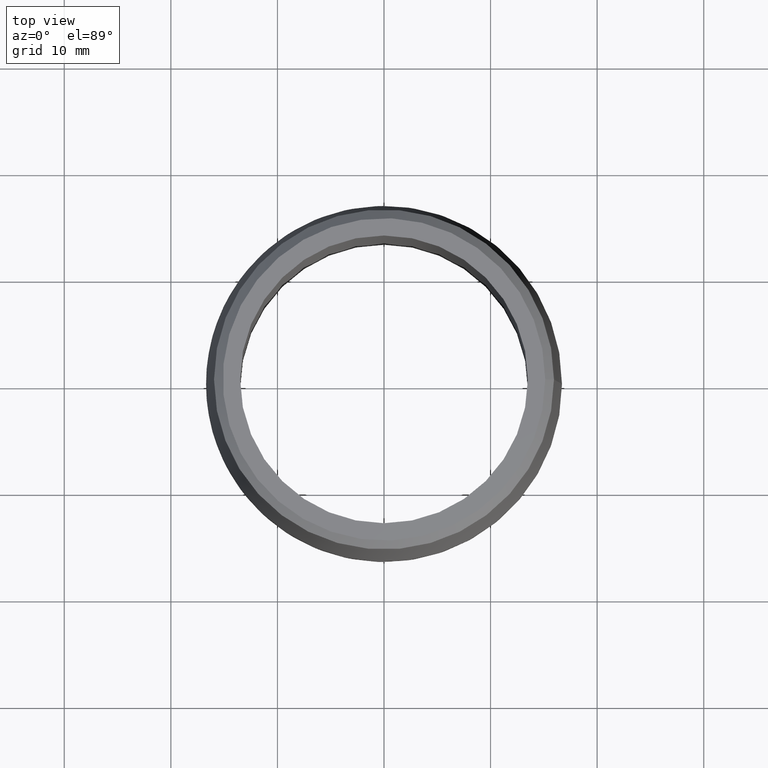
[diagram: clean part render]
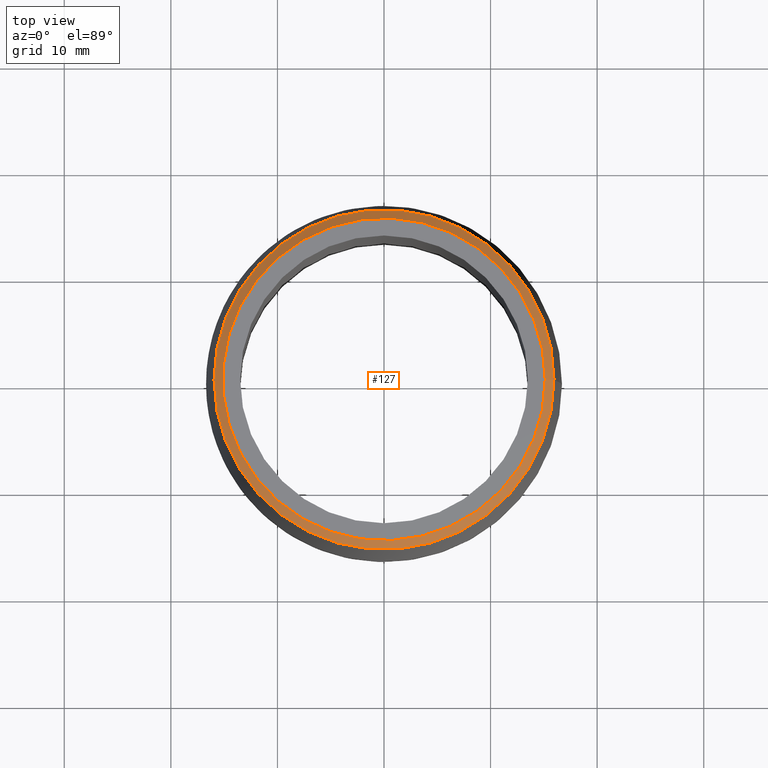
[diagram: same view with one face highlighted and labeled with its STEP entity id]
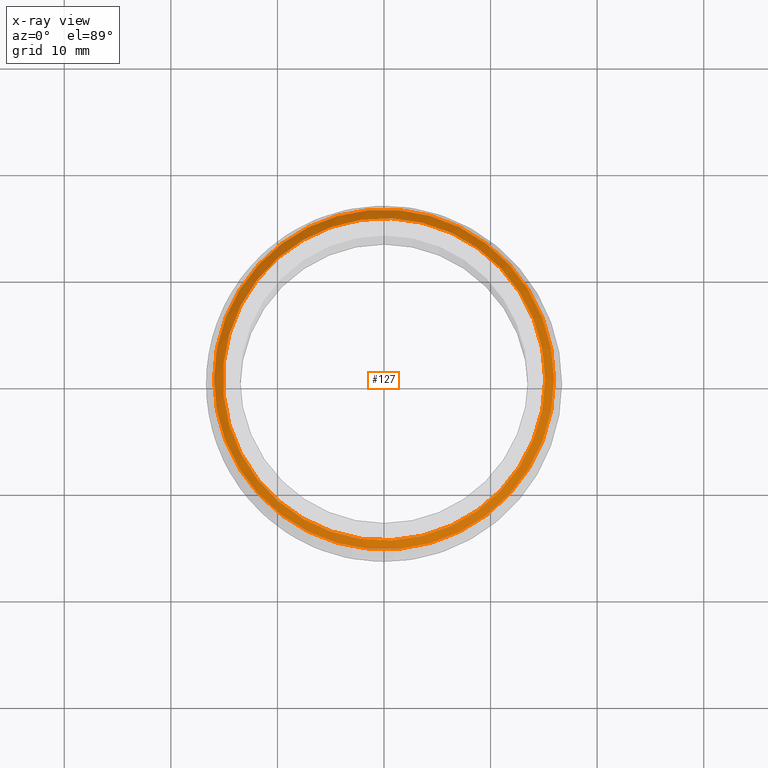
[diagram: x-ray of the same camera — body ghosted, the highlighted face saturated]
A machine part, top view. The second image highlights one B-rep face of the part: STEP entity #127.
The next image is the same camera in x-ray: the body ghosted, the highlighted face saturated — about 0% of this face is hidden behind the body in this view.
In plain terms, the highlighted conical surface has half-angle 45.895 deg.
Its self-contained STEP definition (entity closure, byte-faithful):
#18=CONICAL_SURFACE('',#157,0.61175216268264,0.801018860202793);
#23=FACE_OUTER_BOUND('',#31,.T.);
#31=EDGE_LOOP('',(#89,#90,#91,#92));
#41=LINE('',#224,#47);
#47=VECTOR('',#184,0.61175216268264);
#54=CIRCLE('',#158,0.627865230054466);
#55=CIRCLE('',#159,0.595639095310814);
#63=VERTEX_POINT('',#221);
#64=VERTEX_POINT('',#223);
#73=EDGE_CURVE('',#63,#63,#54,.T.);
#74=EDGE_CURVE('',#63,#64,#41,.T.);
#75=EDGE_CURVE('',#64,#64,#55,.T.);
#89=ORIENTED_EDGE('',*,*,#73,.T.);
#90=ORIENTED_EDGE('',*,*,#74,.T.);
#91=ORIENTED_EDGE('',*,*,#75,.T.);
#92=ORIENTED_EDGE('',*,*,#74,.F.);
#127=ADVANCED_FACE('',(#23),#18,.T.);
#157=AXIS2_PLACEMENT_3D('',#220,#180,#181);
#158=AXIS2_PLACEMENT_3D('',#222,#182,#183);
#159=AXIS2_PLACEMENT_3D('',#225,#185,#186);
#180=DIRECTION('center_axis',(0.,1.23082100709371E-15,-1.));
#181=DIRECTION('ref_axis',(-1.,-3.14215378780657E-17,0.));
#182=DIRECTION('center_axis',(0.,0.,1.));
#183=DIRECTION('ref_axis',(-1.,-6.12303176911189E-17,0.));
#184=DIRECTION('',(-0.718065565180804,-7.91246274158635E-16,0.695975462284104));
#185=DIRECTION('center_axis',(0.,0.,-1.));
#186=DIRECTION('ref_axis',(-1.,0.,0.));
#220=CARTESIAN_POINT('Origin',(0.,1.92221937517212E-17,0.964382624572593));
#221=CARTESIAN_POINT('',(0.627865230054466,1.5377755001377E-16,0.948765249145187));
#222=CARTESIAN_POINT('Origin',(0.,3.84443875034424E-17,0.948765249145187));
#223=CARTESIAN_POINT('',(0.595639095310814,-7.29423420702636E-17,0.98));
#224=CARTESIAN_POINT('',(0.61175216268264,-3.64736452866342E-17,0.964382624572593));
#225=CARTESIAN_POINT('Origin',(0.,0.,0.98));